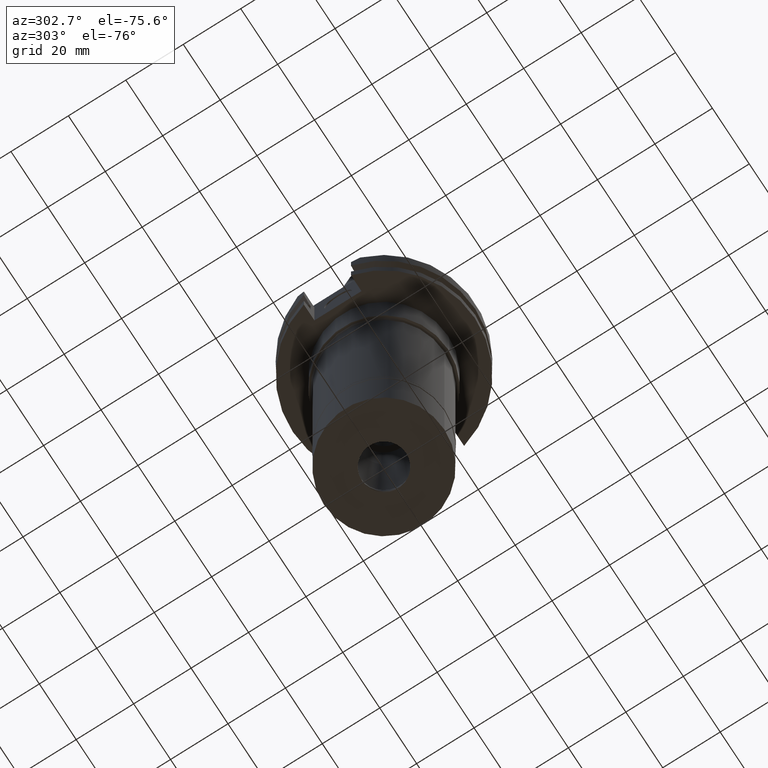
[diagram: clean part render]
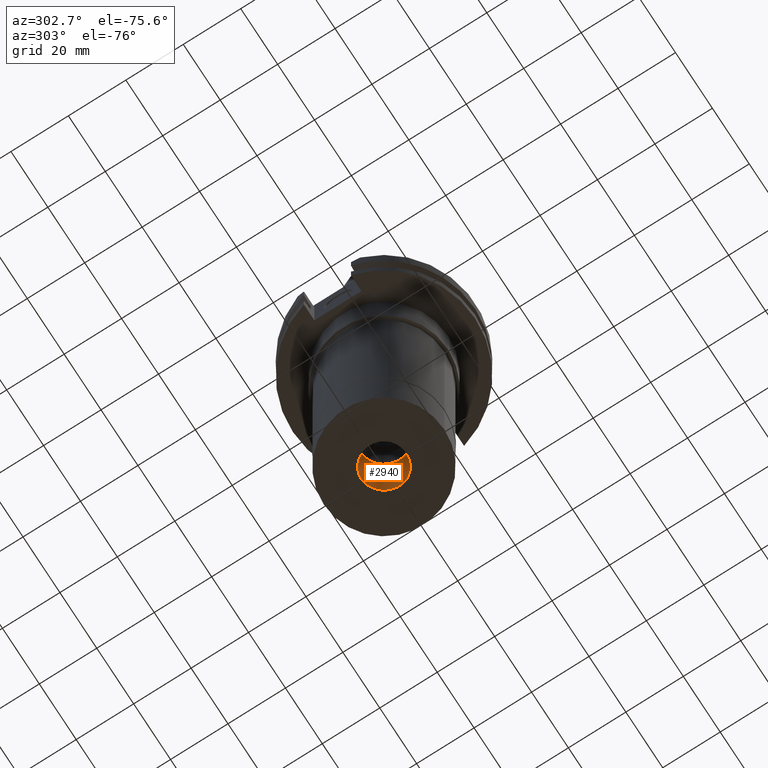
[diagram: same view with one face highlighted and labeled with its STEP entity id]
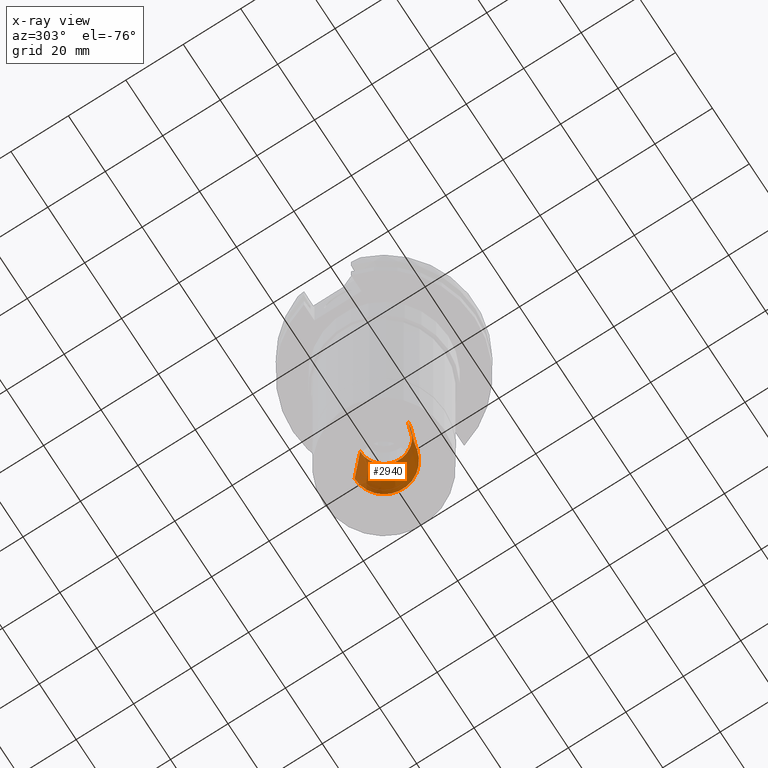
[diagram: x-ray of the same camera — body ghosted, the highlighted face saturated]
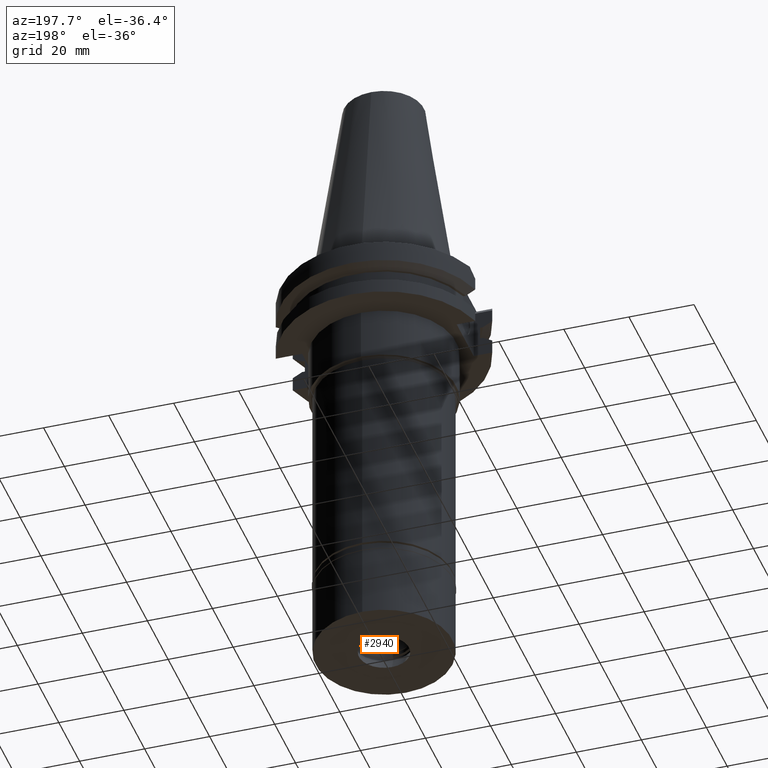
[diagram: same view with one face highlighted and labeled with its STEP entity id]
A machine part, auxiliary view. The second image highlights one B-rep face of the part: STEP entity #2940.
The next image is the same camera in x-ray: the body ghosted, the highlighted face saturated — about 5% of this face is hidden behind the body in this view.
A second angle (auxiliary view) of the same face is appended — the face is thin or edge-on in the first view.
In plain terms, the highlighted conical surface has half-angle 4 deg.
Its self-contained STEP definition (entity closure, byte-faithful):
#81 = CONICAL_SURFACE ( 'NONE', #136, 9.275000000000000355, 0.06981317007975955391 ) ;
#136 = AXIS2_PLACEMENT_3D ( 'NONE', #1906, #310, #2121 ) ;
#242 = VERTEX_POINT ( 'NONE', #1385 ) ;
#310 = DIRECTION ( 'NONE',  ( 0.0000000000000000000, 0.0000000000000000000, -1.000000000000000000 ) ) ;
#610 = AXIS2_PLACEMENT_3D ( 'NONE', #1561, #2575, #825 ) ;
#682 = DIRECTION ( 'NONE',  ( 0.0000000000000000000, 1.000000000000000000, 0.0000000000000000000 ) ) ;
#702 = ORIENTED_EDGE ( 'NONE', *, *, #2733, .F. ) ;
#773 = EDGE_CURVE ( 'NONE', #2018, #242, #1623, .T. ) ;
#803 = EDGE_LOOP ( 'NONE', ( #2740, #2377, #946, #702 ) ) ;
#825 = DIRECTION ( 'NONE',  ( 0.0000000000000000000, 1.000000000000000000, 0.0000000000000000000 ) ) ;
#924 = DIRECTION ( 'NONE',  ( 0.0000000000000000000, 0.0000000000000000000, -1.000000000000000000 ) ) ;
#946 = ORIENTED_EDGE ( 'NONE', *, *, #2026, .F. ) ;
#1014 = EDGE_CURVE ( 'NONE', #2612, #2018, #1096, .T. ) ;
#1052 = VECTOR ( 'NONE', #3234, 1000.000000000000000 ) ;
#1096 = CIRCLE ( 'NONE', #1525, 10.25000000000000000 ) ;
#1140 = CARTESIAN_POINT ( 'NONE',  ( 0.0000000000000000000, 10.25000000000000000, -119.5000000000000000 ) ) ;
#1230 = LINE ( 'NONE', #2210, #1052 ) ;
#1327 = CARTESIAN_POINT ( 'NONE',  ( 0.0000000000000000000, 8.300000000000000711, -91.61370079940998323 ) ) ;
#1385 = CARTESIAN_POINT ( 'NONE',  ( 0.0000000000000000000, -8.300000000000000711, -91.61370079940998323 ) ) ;
#1391 = VECTOR ( 'NONE', #3166, 1000.000000000000000 ) ;
#1525 = AXIS2_PLACEMENT_3D ( 'NONE', #3177, #924, #682 ) ;
#1561 = CARTESIAN_POINT ( 'NONE',  ( 0.0000000000000000000, 0.0000000000000000000, -91.61370079940998323 ) ) ;
#1623 = LINE ( 'NONE', #1696, #1391 ) ;
#1696 = CARTESIAN_POINT ( 'NONE',  ( 0.0000000000000000000, -10.25000000000000000, -119.5000000000000000 ) ) ;
#1906 = CARTESIAN_POINT ( 'NONE',  ( 0.0000000000000000000, 0.0000000000000000000, -105.5568503996999965 ) ) ;
#2018 = VERTEX_POINT ( 'NONE', #2044 ) ;
#2026 = EDGE_CURVE ( 'NONE', #2525, #242, #2094, .T. ) ;
#2044 = CARTESIAN_POINT ( 'NONE',  ( 0.0000000000000000000, -10.25000000000000000, -119.5000000000000000 ) ) ;
#2094 = CIRCLE ( 'NONE', #610, 8.300000000000000711 ) ;
#2121 = DIRECTION ( 'NONE',  ( 0.0000000000000000000, -1.000000000000000000, 0.0000000000000000000 ) ) ;
#2210 = CARTESIAN_POINT ( 'NONE',  ( 0.0000000000000000000, 10.25000000000000000, -119.5000000000000000 ) ) ;
#2377 = ORIENTED_EDGE ( 'NONE', *, *, #773, .T. ) ;
#2525 = VERTEX_POINT ( 'NONE', #1327 ) ;
#2575 = DIRECTION ( 'NONE',  ( 0.0000000000000000000, 0.0000000000000000000, -1.000000000000000000 ) ) ;
#2612 = VERTEX_POINT ( 'NONE', #1140 ) ;
#2733 = EDGE_CURVE ( 'NONE', #2612, #2525, #1230, .T. ) ;
#2740 = ORIENTED_EDGE ( 'NONE', *, *, #1014, .T. ) ;
#2894 = FACE_OUTER_BOUND ( 'NONE', #803, .T. ) ;
#2940 = ADVANCED_FACE ( 'NONE', ( #2894 ), #81, .F. ) ;
#3166 = DIRECTION ( 'NONE',  ( 0.0000000000000000000, 0.06975647374413168622, 0.9975640502598238646 ) ) ;
#3177 = CARTESIAN_POINT ( 'NONE',  ( 0.0000000000000000000, 0.0000000000000000000, -119.5000000000000000 ) ) ;
#3234 = DIRECTION ( 'NONE',  ( 0.0000000000000000000, -0.06975647374413168622, 0.9975640502598238646 ) ) ;